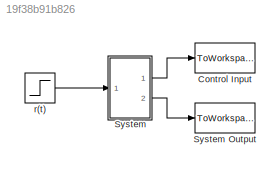
MODEL slx_19f38b91b826
KIND model
CONFIG AbsTol = auto
CONFIG FixedStep = auto
CONFIG MaxStep = 0.01
CONFIG MinStep = auto
CONFIG RelTol = 1e-3
CONFIG SampleTimeConstraint = Unconstrained
CONFIG Solver = ode45
CONFIG SolverMode = Auto
CONFIG SolverName = ode45
CONFIG StartTime = 0.0
CONFIG StopTime = 10
BLOCK [ToWorkspace] Control Input
  MaxDataPoints = inf
  Ports = [1]
  SampleTime = -1
  SaveFormat = Timeseries
  VariableName = u
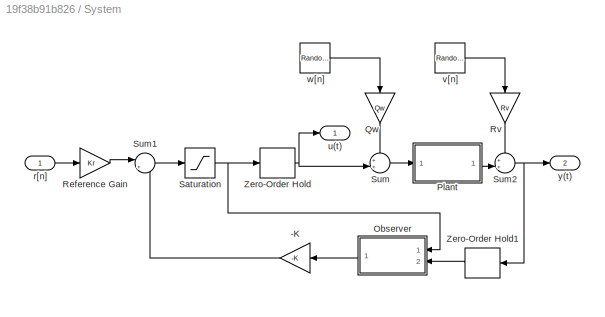
BLOCK [SubSystem] System
  Ports = [1, 2]
  RequestExecContextInheritance = off
BLOCK [ToWorkspace] System Output
  MaxDataPoints = inf
  Ports = [1]
  SampleTime = -1
  SaveFormat = Timeseries
  VariableName = y
BLOCK [Gain] System/-K
  Gain = -K
  Multiplication = Matrix(K*u)
  OutDataTypeStr = Inherit: Inherit via internal rule
  ParamDataTypeStr = Inherit: Inherit via internal rule
  SaturateOnIntegerOverflow = off
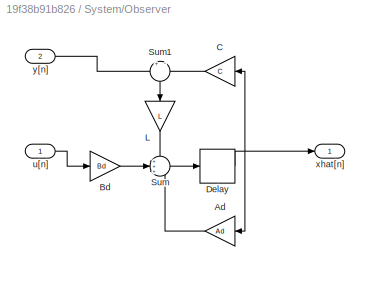
BLOCK [SubSystem] System/Observer
  Ports = [2, 1]
  RequestExecContextInheritance = off
BLOCK [Gain] System/Observer/Ad
  Gain = Ad
  Multiplication = Matrix(K*u)
  OutDataTypeStr = Inherit: Inherit via internal rule
  ParamDataTypeStr = Inherit: Inherit via internal rule
  SaturateOnIntegerOverflow = off
BLOCK [Gain] System/Observer/Bd
  Gain = Bd
  Multiplication = Matrix(K*u)
  OutDataTypeStr = Inherit: Inherit via internal rule
  ParamDataTypeStr = Inherit: Inherit via internal rule
  SaturateOnIntegerOverflow = off
BLOCK [Gain] System/Observer/C
  Gain = C
  Multiplication = Matrix(K*u)
  OutDataTypeStr = Inherit: Inherit via internal rule
  ParamDataTypeStr = Inherit: Inherit via internal rule
  SaturateOnIntegerOverflow = off
BLOCK [Delay] System/Observer/Delay
  DelayLength = 1
  InitialCondition = 0
  InputPortMap = u0
  Ports = [1, 1]
  SampleTime = 0.1
BLOCK [Gain] System/Observer/L
  Gain = L
  Multiplication = Matrix(K*u)
  OutDataTypeStr = Inherit: Inherit via internal rule
  ParamDataTypeStr = Inherit: Inherit via internal rule
  SaturateOnIntegerOverflow = off
BLOCK [Sum] System/Observer/Sum
  IconShape = round
  InputSameDT = off
  Inputs = +++
  OutDataTypeStr = Inherit: Inherit via internal rule
  Ports = [3, 1]
  SaturateOnIntegerOverflow = off
BLOCK [Sum] System/Observer/Sum1
  IconShape = round
  InputSameDT = off
  Inputs = +|-
  OutDataTypeStr = Inherit: Inherit via internal rule
  Ports = [2, 1]
  SaturateOnIntegerOverflow = off
BLOCK [Inport] System/Observer/u[n]
  IconDisplay = Port number
BLOCK [Outport] System/Observer/xhat[n]
  IconDisplay = Port number
BLOCK [Inport] System/Observer/y[n]
  IconDisplay = Port number
  Port = 2
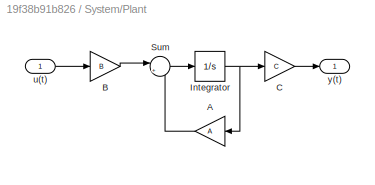
BLOCK [SubSystem] System/Plant
  Ports = [1, 1]
  RequestExecContextInheritance = off
BLOCK [Gain] System/Plant/A
  Gain = A
  Multiplication = Matrix(K*u)
  OutDataTypeStr = Inherit: Inherit via internal rule
  ParamDataTypeStr = Inherit: Inherit via internal rule
  SaturateOnIntegerOverflow = off
BLOCK [Gain] System/Plant/B
  Gain = B
  Multiplication = Matrix(K*u)
  OutDataTypeStr = Inherit: Inherit via internal rule
  ParamDataTypeStr = Inherit: Inherit via internal rule
  SaturateOnIntegerOverflow = off
BLOCK [Gain] System/Plant/C
  Gain = C
  Multiplication = Matrix(K*u)
  OutDataTypeStr = Inherit: Inherit via internal rule
  ParamDataTypeStr = Inherit: Inherit via internal rule
  SaturateOnIntegerOverflow = off
BLOCK [Integrator] System/Plant/Integrator
  Ports = [1, 1]
BLOCK [Sum] System/Plant/Sum
  IconShape = round
  InputSameDT = off
  Inputs = |++
  OutDataTypeStr = Inherit: Inherit via internal rule
  Ports = [2, 1]
  SaturateOnIntegerOverflow = off
BLOCK [Inport] System/Plant/u(t)
  IconDisplay = Port number
BLOCK [Outport] System/Plant/y(t)
  IconDisplay = Port number
BLOCK [Gain] System/Qw
  Gain = Qw
  Multiplication = Matrix(K*u)
  OutDataTypeStr = Inherit: Inherit via internal rule
  ParamDataTypeStr = Inherit: Inherit via internal rule
  SaturateOnIntegerOverflow = off
BLOCK [Gain] System/Reference Gain
  Gain = Kr
  OutDataTypeStr = Inherit: Inherit via internal rule
  ParamDataTypeStr = Inherit: Inherit via internal rule
  SaturateOnIntegerOverflow = off
BLOCK [Gain] System/Rv
  Gain = Rv
  Multiplication = Matrix(K*u)
  OutDataTypeStr = Inherit: Inherit via internal rule
  ParamDataTypeStr = Inherit: Inherit via internal rule
  SaturateOnIntegerOverflow = off
BLOCK [Saturate] System/Saturation
  InputPortMap = u0
  LowerLimit = 0
  Ports = [1, 1]
  UpperLimit = 5
BLOCK [Sum] System/Sum
  IconShape = round
  InputSameDT = off
  Inputs = ++|
  OutDataTypeStr = Inherit: Inherit via internal rule
  Ports = [2, 1]
  SaturateOnIntegerOverflow = off
BLOCK [Sum] System/Sum1
  IconShape = round
  InputSameDT = off
  Inputs = |++
  OutDataTypeStr = Inherit: Inherit via internal rule
  Ports = [2, 1]
  SaturateOnIntegerOverflow = off
BLOCK [Sum] System/Sum2
  IconShape = round
  InputSameDT = off
  Inputs = ++|
  OutDataTypeStr = Inherit: Inherit via internal rule
  Ports = [2, 1]
  SaturateOnIntegerOverflow = off
BLOCK [ZeroOrderHold] System/Zero-Order Hold
  SampleTime = 0.1
BLOCK [ZeroOrderHold] System/Zero-Order Hold1
  SampleTime = 0.1
BLOCK [Inport] System/r[n]
  IconDisplay = Port number
BLOCK [Outport] System/u(t)
  IconDisplay = Port number
BLOCK [RandomNumber] System/v[n]
  SampleTime = 0.1
BLOCK [RandomNumber] System/w[n]
  SampleTime = 0.1
BLOCK [Outport] System/y(t)
  IconDisplay = Port number
  Port = 2
BLOCK [Step] r(t)
  After = 2.5
  SampleTime = 0
  Time = 0
LINE System/-K:1 -> System/Sum1:2
LINE System/Observer/Ad:1 -> System/Observer/Sum:3
LINE System/Observer/Bd:1 -> System/Observer/Sum:2
LINE System/Observer/C:1 -> System/Observer/Sum1:2
NET System/Observer/Delay:1 -> System/Observer/Ad:1, System/Observer/C:1, System/Observer/xhat[n]:1
LINE System/Observer/L:1 -> System/Observer/Sum:1
LINE System/Observer/Sum1:1 -> System/Observer/L:1
LINE System/Observer/Sum:1 -> System/Observer/Delay:1
LINE System/Observer/u[n]:1 -> System/Observer/Bd:1
LINE System/Observer/y[n]:1 -> System/Observer/Sum1:1
LINE System/Observer:1 -> System/-K:1
LINE System/Plant/A:1 -> System/Plant/Sum:2
LINE System/Plant/B:1 -> System/Plant/Sum:1
LINE System/Plant/C:1 -> System/Plant/y(t):1
NET System/Plant/Integrator:1 -> System/Plant/A:1, System/Plant/C:1
LINE System/Plant/Sum:1 -> System/Plant/Integrator:1
LINE System/Plant/u(t):1 -> System/Plant/B:1
LINE System/Plant:1 -> System/Sum2:2
LINE System/Qw:1 -> System/Sum:1
LINE System/Reference Gain:1 -> System/Sum1:1
LINE System/Rv:1 -> System/Sum2:1
NET System/Saturation:1 -> System/Observer:1, System/Zero-Order Hold:1
LINE System/Sum1:1 -> System/Saturation:1
NET System/Sum2:1 -> System/Zero-Order Hold1:1, System/y(t):1
LINE System/Sum:1 -> System/Plant:1
LINE System/Zero-Order Hold1:1 -> System/Observer:2
NET System/Zero-Order Hold:1 -> System/Sum:2, System/u(t):1
LINE System/r[n]:1 -> System/Reference Gain:1
LINE System/v[n]:1 -> System/Rv:1
LINE System/w[n]:1 -> System/Qw:1
LINE System:1 -> Control Input:1
LINE System:2 -> System Output:1
LINE r(t):1 -> System:1
note: NET lines group one-source signal fan-out (src -> all destinations, sorted); 1:1 wires keep LINE
